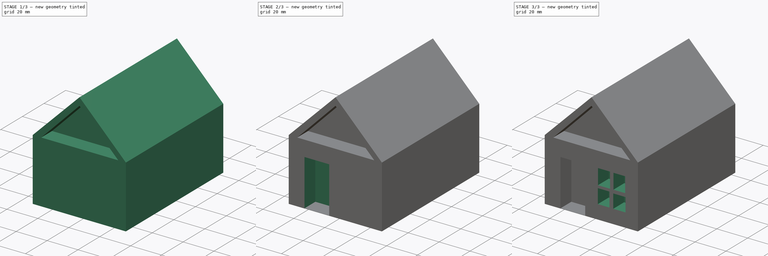
[diagram: build sequence overview — one tinted view per stage of 3, left to right]
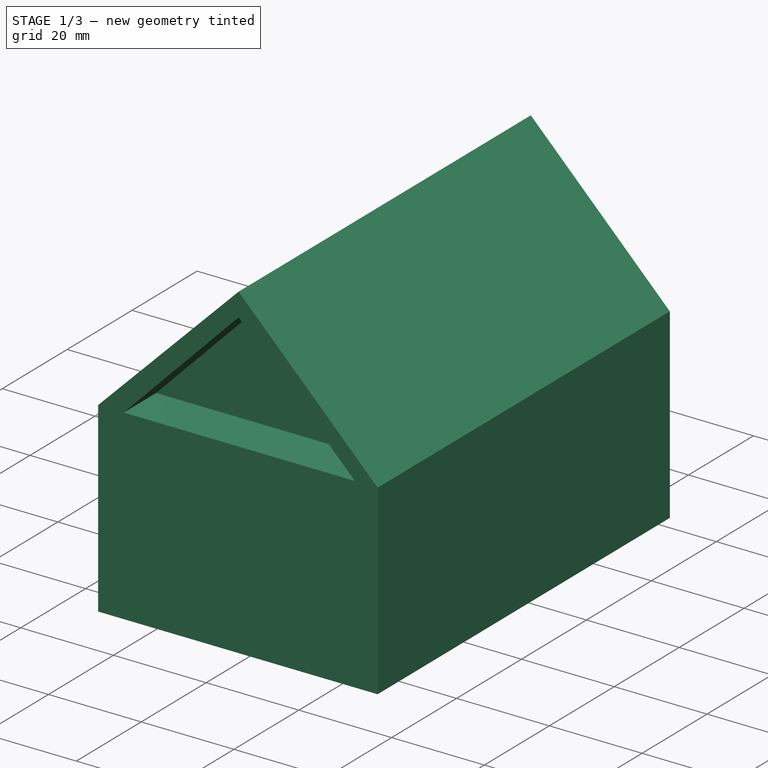
[diagram: stage 1 of 3 — iso view after this stage's code; geometry added in this stage tinted green]
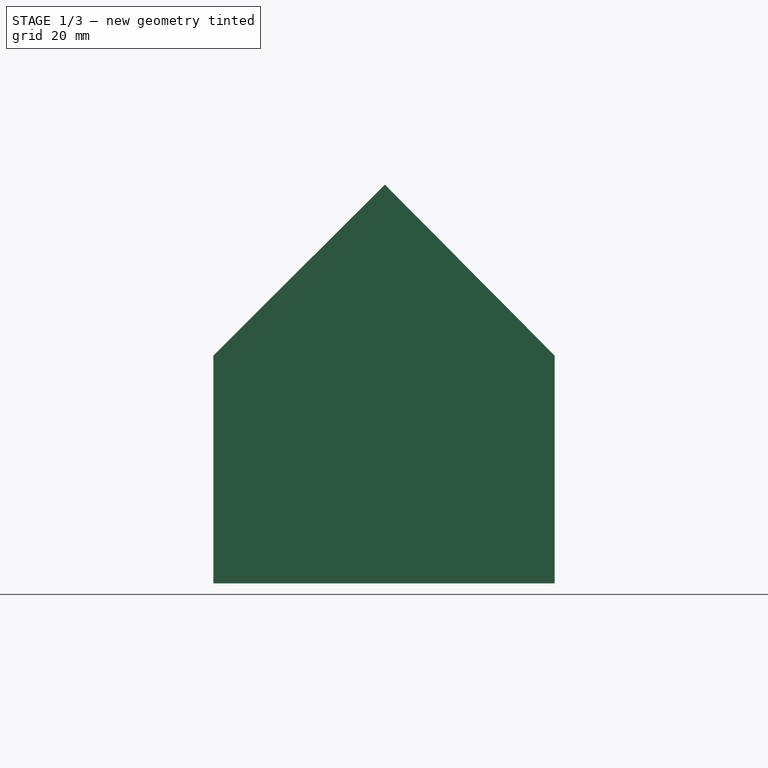
[diagram: stage 1 of 3 — front view after this stage's code; geometry added in this stage tinted green]
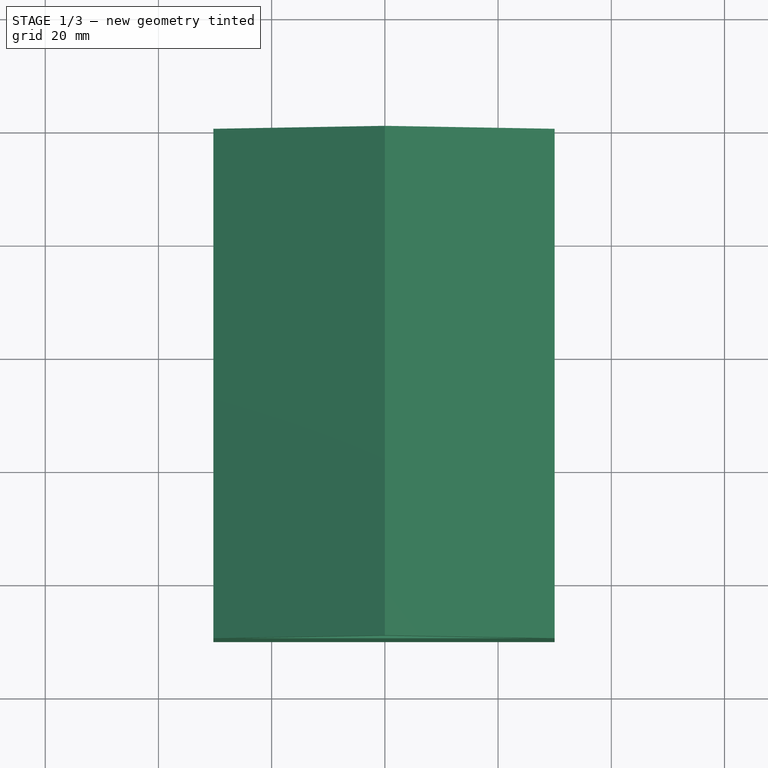
[diagram: stage 1 of 3 — top view after this stage's code; geometry added in this stage tinted green]
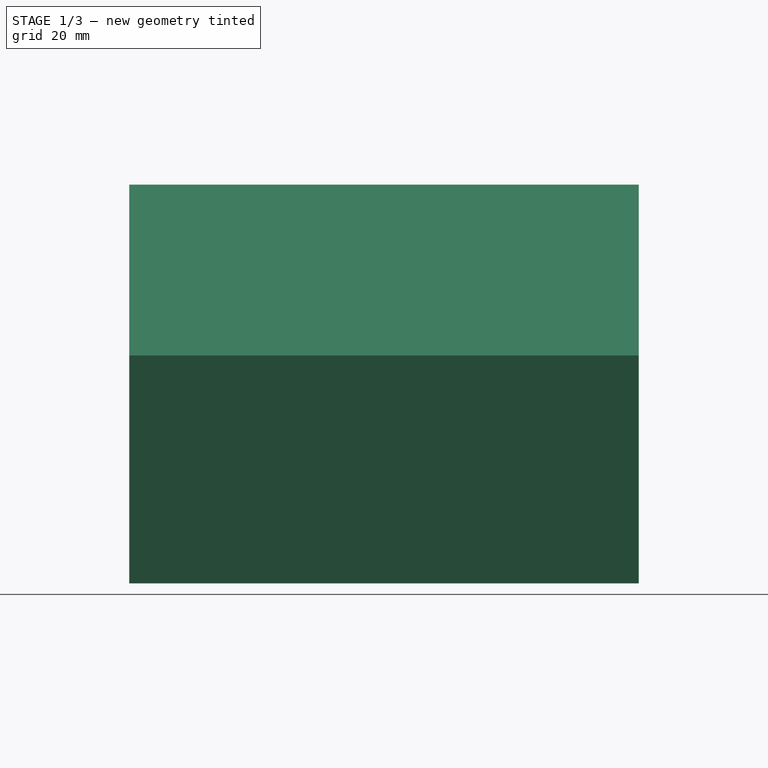
[diagram: stage 1 of 3 — right view after this stage's code; geometry added in this stage tinted green]
FCSTD DOCUMENT  (FreeCAD 0.21R33694 (Git))
Label: OJT1_T17R02.casa_pintada
License: All rights reserved
LicenseURL: http://en.wikipedia.org/wiki/All_rights_reserved
objects: Sketcher::SketchObject×5, PartDesign::Pocket×4, PartDesign::Pad×1, PartDesign::Body×1
note: 16 computed .brp shape members not serialized (recipe doc carries the construction recipe); baked Part::Feature solids carry a one-line shape summary decoded from their .brp

FEATURE [Sketcher::SketchObject] Sketch
  FullyConstrained = false
  MapMode = 5
  Placement = pos=(0,0,0) rot=(1,0,0;1.5708rad)
  Support = -> [XZ_Plane]
  sketch-geometry (5):
    g0: LineSegment StartX=0 StartY=30.1926 StartZ=0 EndX=-30.2839 EndY=3.6e-15 EndZ=0
    g1: LineSegment StartX=-30.2839 StartY=3.6e-15 StartZ=0 EndX=-30.2839 EndY=-40.2575 EndZ=0
    g2: LineSegment StartX=-30.2839 StartY=-40.2575 StartZ=0 EndX=29.9764 EndY=-40.2575 EndZ=0
    g3: LineSegment StartX=29.9764 StartY=-40.2575 StartZ=0 EndX=29.9764 EndY=0 EndZ=0
    g4: LineSegment StartX=29.9764 StartY=0 StartZ=0 EndX=0 EndY=30.1926 EndZ=0
  constraints (11):
    c: PointOnObject(g0,g-2)
    c: PointOnObject(g0,g-1)
    c: Coincident(g0,g1)
    c: Vertical(g1)
    c: Coincident(g1,g2)
    c: Horizontal(g2)
    c: Coincident(g2,g3)
    c: PointOnObject(g3,g-1)
    c: Vertical(g3)
    c: Coincident(g3,g4)
    c: Coincident(g4,g0)
FEATURE [PartDesign::Pad] Pad
  Direction = (0,-1,2e-16)
  Length = 90
  Length2 = 10
  Placement = pos=(0,0,0) rot=(1,0,0;1.5708rad)
  Profile = -> Sketch
  ReferenceAxis = -> Sketch [N_Axis]
  Refine = true
  Type = 0
FEATURE [Sketcher::SketchObject] Sketch001
  FullyConstrained = false
  MapMode = 5
  Placement = pos=(0,-90,3.98e-14) rot=(1,0,0;1.5708rad)
  Support = -> [Pad]
  sketch-geometry (3):
    g0: LineSegment StartX=0 StartY=25.1879 StartZ=0 EndX=25.0626 EndY=0 EndZ=0
    g1: LineSegment StartX=25.0626 StartY=0 StartZ=0 EndX=-24.791 EndY=0 EndZ=0
    g2: LineSegment StartX=-24.791 StartY=0 StartZ=0 EndX=0 EndY=25.1879 EndZ=0
  constraints (6):
    c: PointOnObject(g0,g-2)
    c: PointOnObject(g0,g-1)
    c: Coincident(g0,g1)
    c: Horizontal(g1)
    c: Coincident(g1,g2)
    c: Coincident(g2,g0)
FEATURE [PartDesign::Pocket] Pocket
  BaseFeature = -> Pad
  Direction = (0,1,-2e-16)
  Length = 10
  Length2 = 5
  Placement = pos=(0,0,0) rot=(1,0,0;1.5708rad)
  Profile = -> Sketch001
  ReferenceAxis = -> Sketch001 [N_Axis]
  Refine = true
  Type = 0
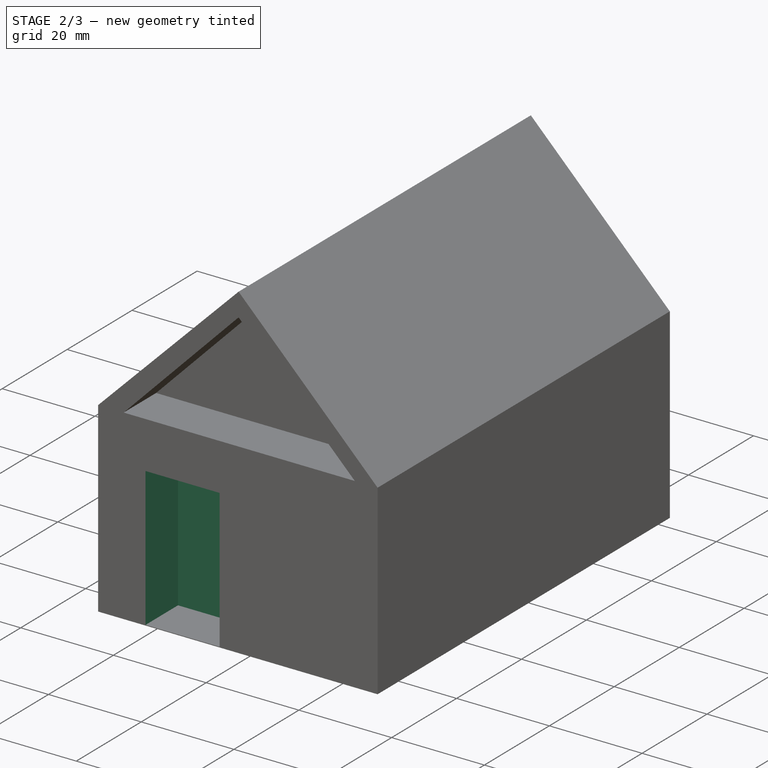
[diagram: stage 2 of 3 — iso view after this stage's code; geometry added in this stage tinted green]
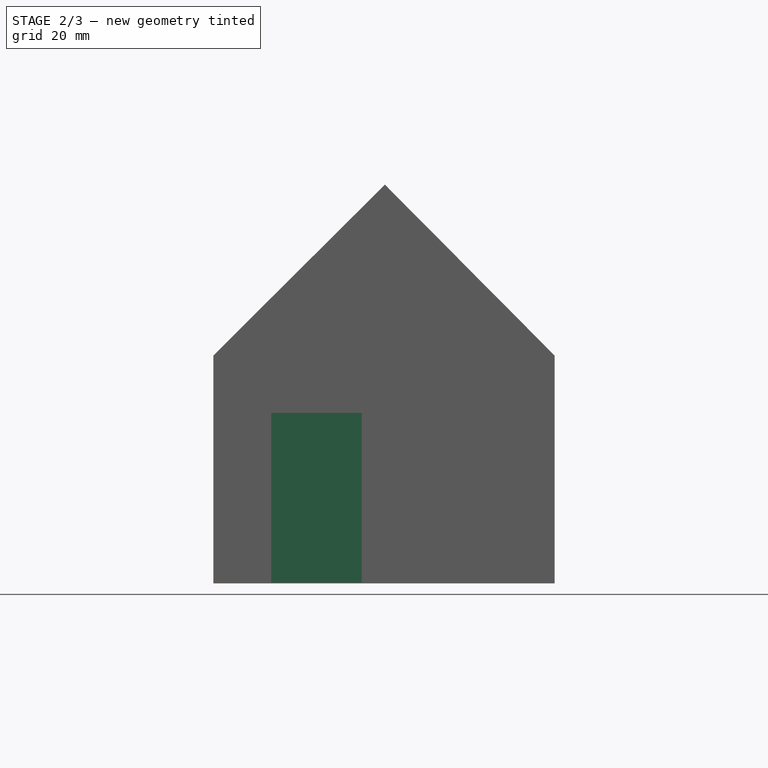
[diagram: stage 2 of 3 — front view after this stage's code; geometry added in this stage tinted green]
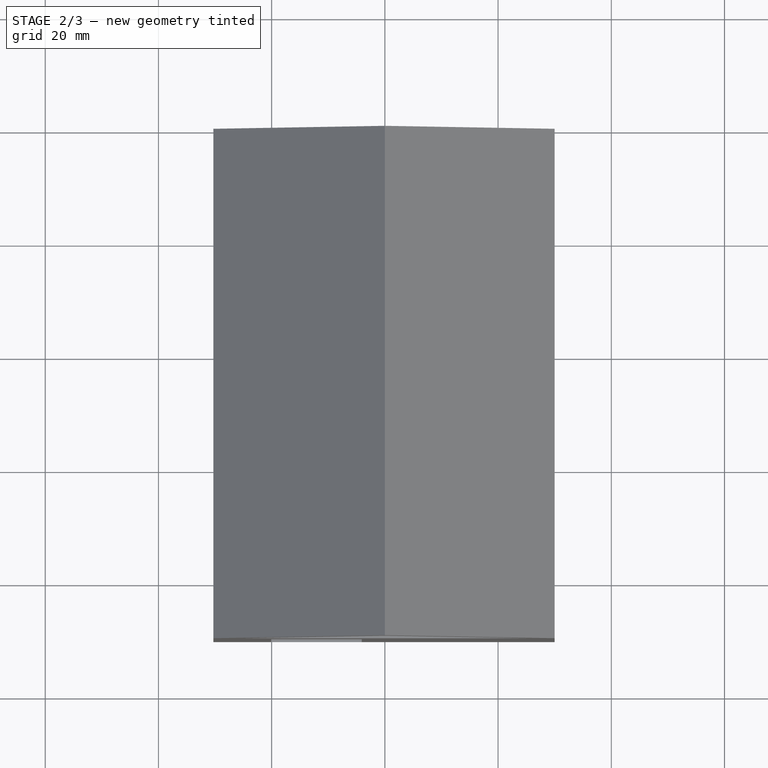
[diagram: stage 2 of 3 — top view after this stage's code; geometry added in this stage tinted green]
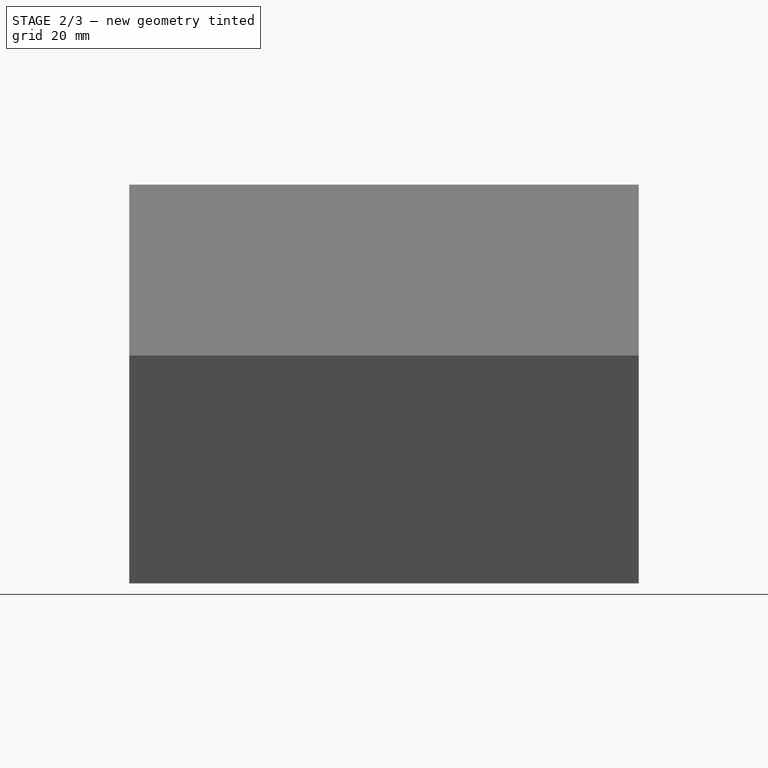
[diagram: stage 2 of 3 — right view after this stage's code; geometry added in this stage tinted green]
FEATURE [Sketcher::SketchObject] Sketch002
  FullyConstrained = false
  MapMode = 5
  Placement = pos=(0,-90,3.98e-14) rot=(1,0,0;1.5708rad)
  Support = -> [Pocket]
  sketch-geometry (4):
    g0: LineSegment StartX=-20.0713 StartY=-40.1228 StartZ=0 EndX=-20.0713 EndY=-10.1268 EndZ=0
    g1: LineSegment StartX=-20.0713 StartY=-10.1268 StartZ=0 EndX=-4.09368 EndY=-10.1268 EndZ=0
    g2: LineSegment StartX=-4.09368 StartY=-10.1268 StartZ=0 EndX=-4.09368 EndY=-40.1228 EndZ=0
    g3: LineSegment StartX=-4.09368 StartY=-40.1228 StartZ=0 EndX=-20.0713 EndY=-40.1228 EndZ=0
  constraints (8):
    c: Vertical(g0)
    c: Coincident(g0,g1)
    c: Horizontal(g1)
    c: Coincident(g1,g2)
    c: Vertical(g2)
    c: Coincident(g2,g3)
    c: Coincident(g3,g0)
    c: Horizontal(g3)
FEATURE [PartDesign::Pocket] Pocket001
  BaseFeature = -> Pocket
  Direction = (0,1,-2e-16)
  Length = 10
  Length2 = 5
  Placement = pos=(0,0,0) rot=(1,0,0;1.5708rad)
  Profile = -> Sketch002
  ReferenceAxis = -> Sketch002 [N_Axis]
  Refine = true
  Type = 0
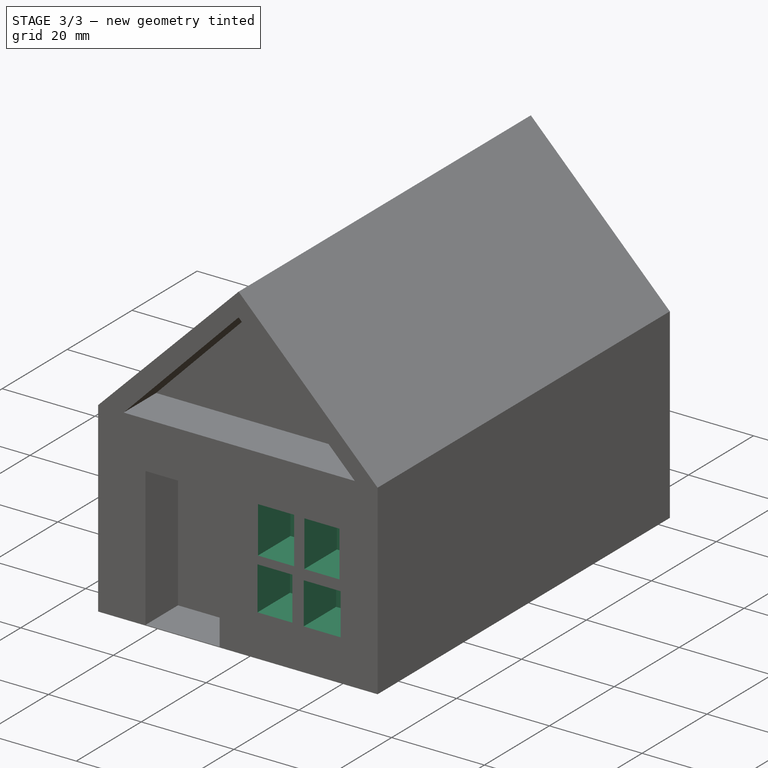
[diagram: stage 3 of 3 — iso view after this stage's code; geometry added in this stage tinted green]
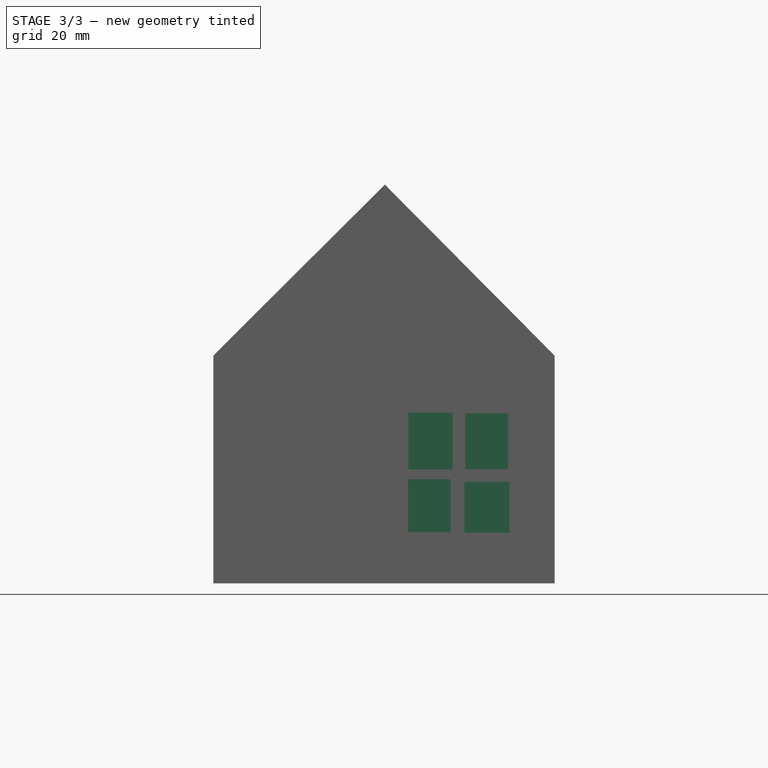
[diagram: stage 3 of 3 — front view after this stage's code; geometry added in this stage tinted green]
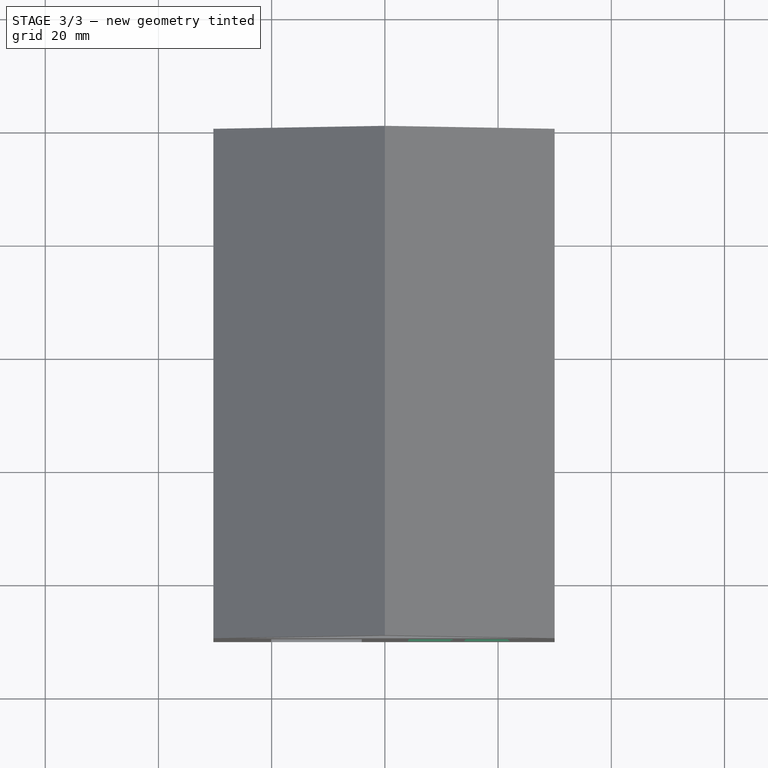
[diagram: stage 3 of 3 — top view after this stage's code; geometry added in this stage tinted green]
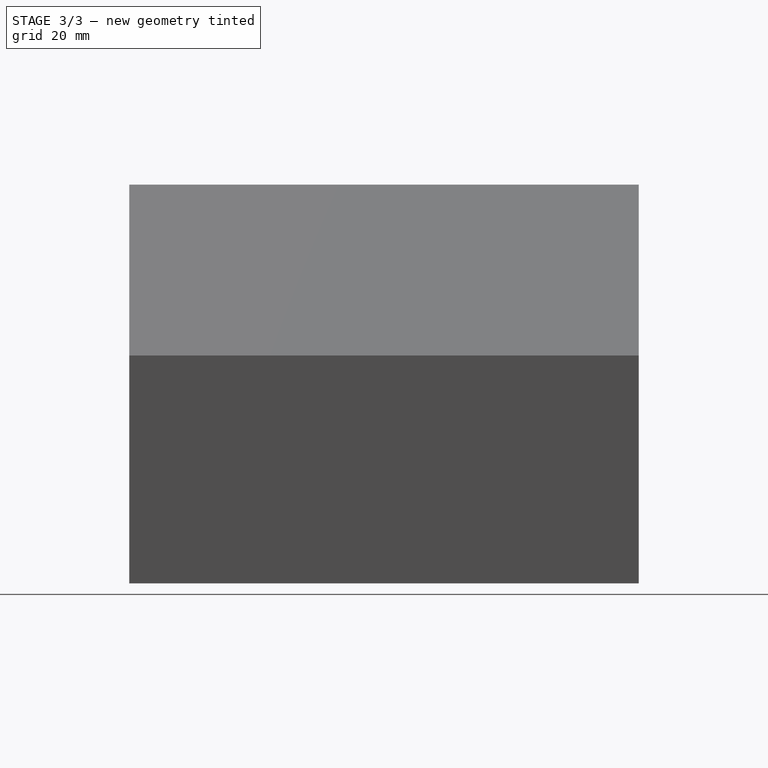
[diagram: stage 3 of 3 — right view after this stage's code; geometry added in this stage tinted green]
FEATURE [Sketcher::SketchObject] Sketch003
  FullyConstrained = false
  MapMode = 5
  Placement = pos=(0,-90,3.98e-14) rot=(1,0,0;1.5708rad)
  Support = -> [Pocket001]
  sketch-geometry (4):
    g0: LineSegment StartX=4.17348 StartY=-10.0928 StartZ=0 EndX=4.17348 EndY=-20.1259 EndZ=0
    g1: LineSegment StartX=4.17348 StartY=-20.1259 StartZ=0 EndX=11.977 EndY=-20.1259 EndZ=0
    g2: LineSegment StartX=11.977 StartY=-20.1259 StartZ=0 EndX=11.977 EndY=-10.0928 EndZ=0
    g3: LineSegment StartX=11.977 StartY=-10.0928 StartZ=0 EndX=4.17348 EndY=-10.0928 EndZ=0
  constraints (8):
    c: Vertical(g0)
    c: Coincident(g0,g1)
    c: Horizontal(g1)
    c: Coincident(g1,g2)
    c: Vertical(g2)
    c: Coincident(g2,g3)
    c: Coincident(g3,g0)
    c: Horizontal(g3)
FEATURE [PartDesign::Pocket] Pocket002
  BaseFeature = -> Pocket001
  Direction = (0,1,-2e-16)
  Length = 10
  Length2 = 5
  Placement = pos=(0,0,0) rot=(1,0,0;1.5708rad)
  Profile = -> Sketch003
  ReferenceAxis = -> Sketch003 [N_Axis]
  Refine = true
  Type = 0
FEATURE [Sketcher::SketchObject] Sketch004
  FullyConstrained = false
  MapMode = 5
  Placement = pos=(0,-90,3.98e-14) rot=(1,0,0;1.5708rad)
  Support = -> [Pocket002]
  sketch-geometry (12):
    g0: LineSegment StartX=14.1883 StartY=-10.1883 StartZ=0 EndX=21.7688 EndY=-10.1883 EndZ=0
    g1: LineSegment StartX=21.7688 StartY=-10.1883 StartZ=0 EndX=21.7688 EndY=-20.0728 EndZ=0
    g2: LineSegment StartX=21.7688 StartY=-20.0728 StartZ=0 EndX=14.1883 EndY=-20.0728 EndZ=0
    g3: LineSegment StartX=14.1883 StartY=-20.0728 StartZ=0 EndX=14.1883 EndY=-10.1883 EndZ=0
    g4: LineSegment StartX=4.08089 StartY=-21.8564 StartZ=0 EndX=11.5871 EndY=-21.8564 EndZ=0
    g5: LineSegment StartX=11.5871 StartY=-21.8564 StartZ=0 EndX=11.5871 EndY=-31.2206 EndZ=0
    g6: LineSegment StartX=11.5871 StartY=-31.2206 StartZ=0 EndX=4.08089 EndY=-31.2206 EndZ=0
    g7: LineSegment StartX=4.08089 StartY=-31.2206 StartZ=0 EndX=4.08089 EndY=-21.8564 EndZ=0
    g8: LineSegment StartX=14.0396 StartY=-22.3023 StartZ=0 EndX=21.9918 EndY=-22.3023 EndZ=0
    g9: LineSegment StartX=21.9918 StartY=-22.3023 StartZ=0 EndX=21.9918 EndY=-31.295 EndZ=0
    g10: LineSegment StartX=21.9918 StartY=-31.295 StartZ=0 EndX=14.0396 EndY=-31.295 EndZ=0
    g11: LineSegment StartX=14.0396 StartY=-31.295 StartZ=0 EndX=14.0396 EndY=-22.3023 EndZ=0
  constraints (24):
    c: Coincident(g0,g1)
    c: Coincident(g1,g2)
    c: Coincident(g2,g3)
    c: Coincident(g3,g0)
    c: Horizontal(g0)
    c: Horizontal(g2)
    c: Vertical(g1)
    c: Vertical(g3)
    c: Coincident(g4,g5)
    c: Coincident(g5,g6)
    c: Coincident(g6,g7)
    c: Coincident(g7,g4)
    c: Horizontal(g4)
    c: Horizontal(g6)
    c: Vertical(g5)
    c: Vertical(g7)
    c: Coincident(g8,g9)
    c: Coincident(g9,g10)
    c: Coincident(g10,g11)
    c: Coincident(g11,g8)
    c: Horizontal(g8)
    c: Horizontal(g10)
    c: Vertical(g9)
    c: Vertical(g11)
FEATURE [PartDesign::Pocket] Pocket003
  BaseFeature = -> Pocket002
  Direction = (0,1,-2e-16)
  Length = 10
  Length2 = 5
  Placement = pos=(0,0,0) rot=(1,0,0;1.5708rad)
  Profile = -> Sketch004
  ReferenceAxis = -> Sketch004 [N_Axis]
  Refine = true
  Type = 0
FEATURE [PartDesign::Body] Body
  Group = -> [Sketch,Pad,Sketch001,Pocket,Sketch002,Pocket001,Sketch003,Pocket002,Sketch004,Pocket003]
  Origin = -> Origin
  Tip = -> Pocket003
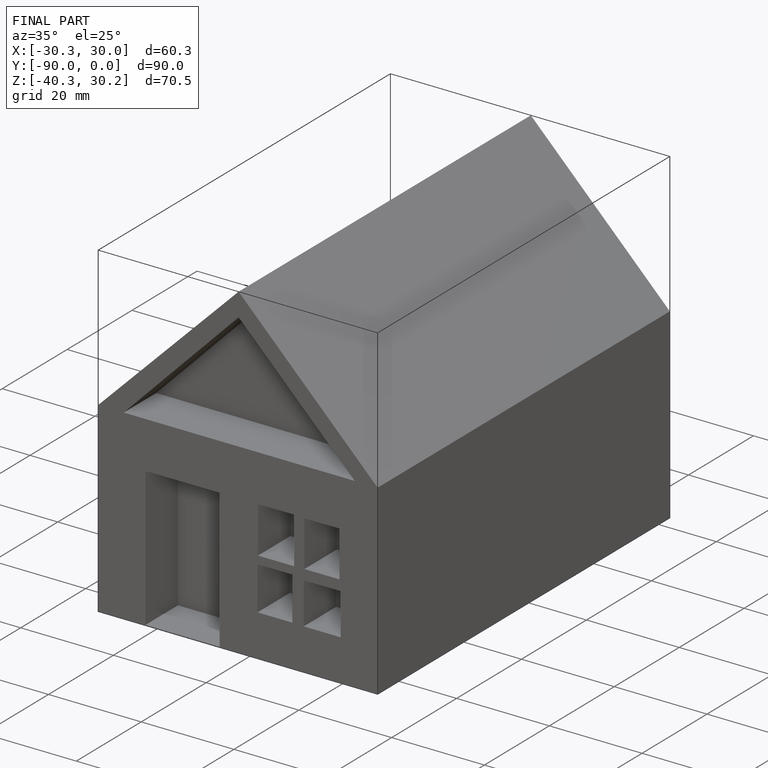
[diagram: finished part — iso view with bounding-box wireframe]
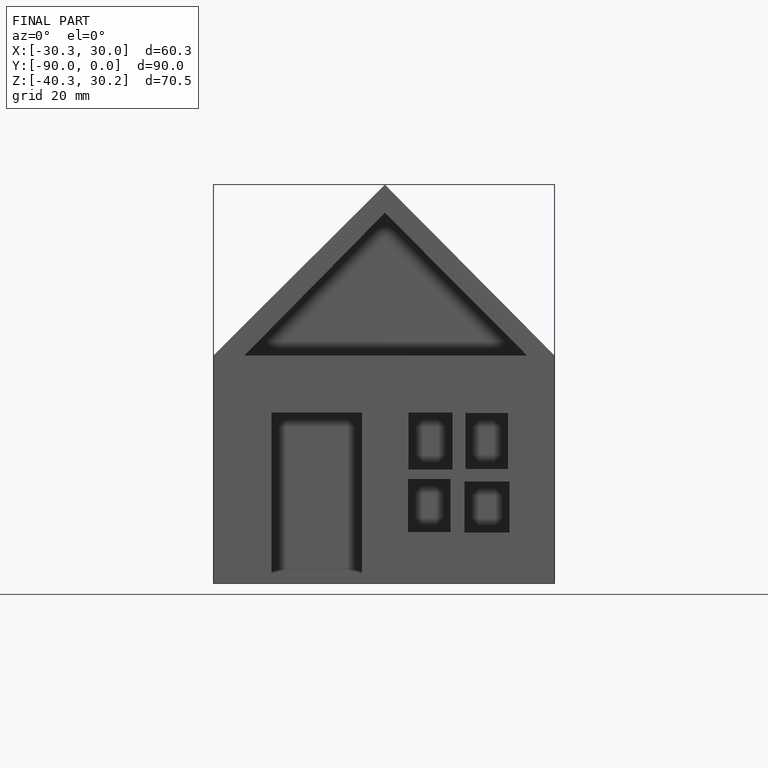
[diagram: finished part — front view with bounding-box wireframe]
